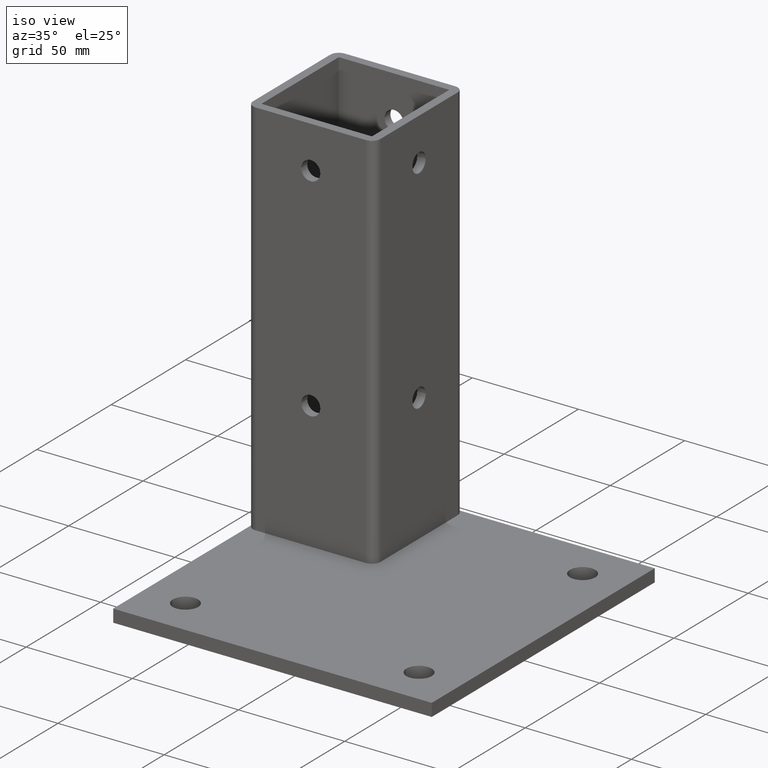
[diagram: clean part render]
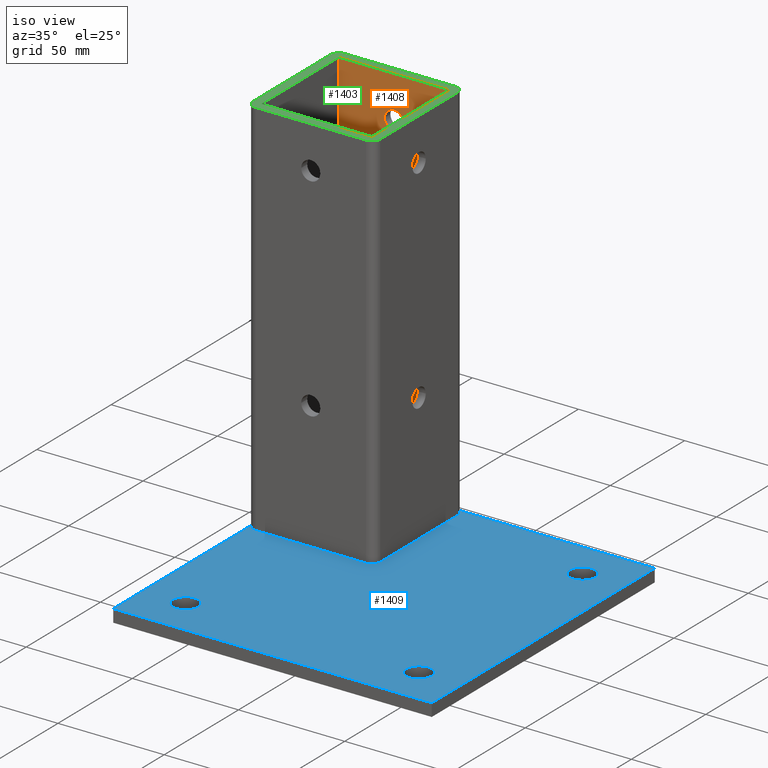
[diagram: same view with three faces highlighted in distinct colors, each labeled with its STEP entity id]
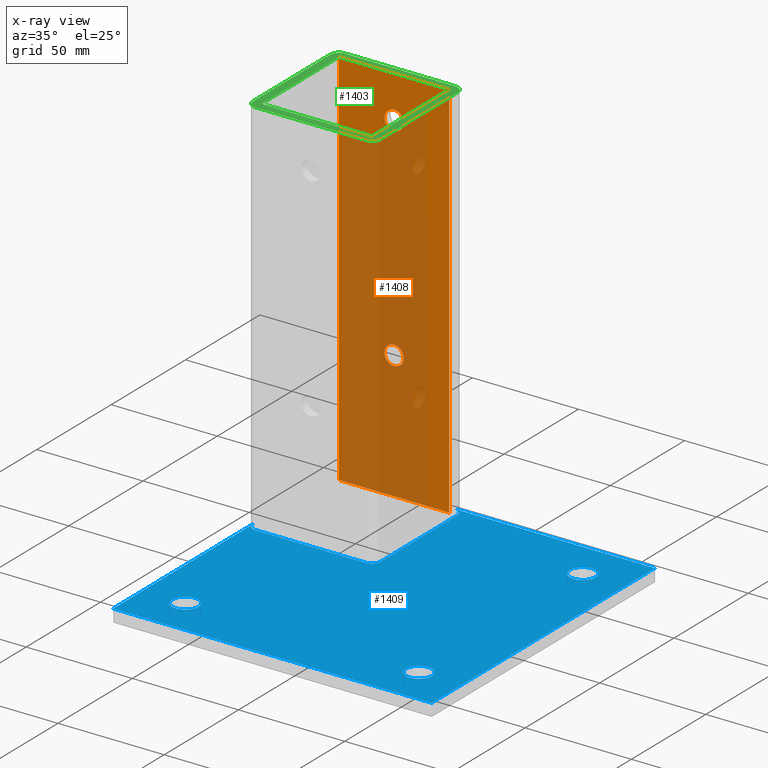
[diagram: x-ray of the same camera — body ghosted, the three highlighted faces saturated]
A machine part, iso view with three faces highlighted in distinct colors.
The next image is the same camera in x-ray (body ghosted, the three faces saturated) — at least one of them is partly hidden behind the body in this view.
Their STEP definitions:

[orange] entity #1408 — the highlighted planar face has unit normal (0, -1, 0).
#20 = CARTESIAN_POINT ( 'NONE',  ( 26.00000000000000400, 26.00000000000000400, 6.938893903907228400E-015 ) ) ;
#58 = VERTEX_POINT ( 'NONE', #20 ) ;
#65 = VERTEX_POINT ( 'NONE', #1233 ) ;
#66 = VERTEX_POINT ( 'NONE', #1232 ) ;
#67 = VERTEX_POINT ( 'NONE', #1240 ) ;
#104 = CARTESIAN_POINT ( 'NONE',  ( -1.541976423090492700E-015, 26.00000000000000400, 160.0000000000000000 ) ) ;
#105 = DIRECTION ( 'NONE',  ( -3.854941057726234600E-016, -1.000000000000000000, 0.0000000000000000000 ) ) ;
#106 = DIRECTION ( 'NONE',  ( 1.000000000000000000, 0.0000000000000000000, 0.0000000000000000000 ) ) ;
#217 = PLANE ( 'NONE',  #1358 ) ;
#278 = EDGE_CURVE ( 'NONE', #67, #58, #523, .T. ) ;
#283 = EDGE_CURVE ( 'NONE', #58, #65, #1224, .T. ) ;
#285 = EDGE_CURVE ( 'NONE', #65, #66, #995, .T. ) ;
#287 = EDGE_CURVE ( 'NONE', #66, #67, #999, .T. ) ;
#289 = EDGE_CURVE ( 'NONE', #924, #925, #1003, .T. ) ;
#291 = EDGE_CURVE ( 'NONE', #923, #927, #1005, .T. ) ;
#338 = EDGE_CURVE ( 'NONE', #927, #923, #1078, .T. ) ;
#342 = EDGE_CURVE ( 'NONE', #925, #924, #1084, .T. ) ;
#396 = CARTESIAN_POINT ( 'NONE',  ( -1.541976423090492700E-015, 26.00000000000000400, 160.0000000000000000 ) ) ;
#397 = DIRECTION ( 'NONE',  ( -3.854941057726234600E-016, -1.000000000000000000, 0.0000000000000000000 ) ) ;
#398 = DIRECTION ( 'NONE',  ( 1.000000000000000000, 0.0000000000000000000, 0.0000000000000000000 ) ) ;
#406 = CARTESIAN_POINT ( 'NONE',  ( -1.541976423090494400E-015, 26.00000000000000400, 60.00000000000000000 ) ) ;
#407 = DIRECTION ( 'NONE',  ( 3.854941057726240600E-016, 1.000000000000000000, -5.944228223417393100E-031 ) ) ;
#408 = DIRECTION ( 'NONE',  ( 1.000000000000000000, 0.0000000000000000000, 0.0000000000000000000 ) ) ;
#438 = CARTESIAN_POINT ( 'NONE',  ( 4.500000000000002700, 26.00000000000000400, 160.0000000000000000 ) ) ;
#439 = CARTESIAN_POINT ( 'NONE',  ( -4.499999999999999100, 26.00000000000000400, 60.00000000000000000 ) ) ;
#440 = CARTESIAN_POINT ( 'NONE',  ( 4.499999999999995600, 26.00000000000000400, 60.00000000000000000 ) ) ;
#442 = CARTESIAN_POINT ( 'NONE',  ( -4.500000000000005300, 26.00000000000000400, 160.0000000000000000 ) ) ;
#522 = VECTOR ( 'NONE', #1267, 1000.000000000000000 ) ;
#523 = LINE ( 'NONE', #1266, #522 ) ;
#589 = EDGE_LOOP ( 'NONE', ( #597, #596, #595, #594 ) ) ;
#594 = ORIENTED_EDGE ( 'NONE', *, *, #283, .T. ) ;
#595 = ORIENTED_EDGE ( 'NONE', *, *, #278, .T. ) ;
#596 = ORIENTED_EDGE ( 'NONE', *, *, #287, .T. ) ;
#597 = ORIENTED_EDGE ( 'NONE', *, *, #285, .T. ) ;
#598 = ORIENTED_EDGE ( 'NONE', *, *, #338, .F. ) ;
#599 = ORIENTED_EDGE ( 'NONE', *, *, #291, .F. ) ;
#600 = ORIENTED_EDGE ( 'NONE', *, *, #289, .T. ) ;
#697 = EDGE_LOOP ( 'NONE', ( #711, #600 ) ) ;
#698 = EDGE_LOOP ( 'NONE', ( #599, #598 ) ) ;
#711 = ORIENTED_EDGE ( 'NONE', *, *, #342, .T. ) ;
#896 = AXIS2_PLACEMENT_3D ( 'NONE', #406, #407, #408 ) ;
#898 = AXIS2_PLACEMENT_3D ( 'NONE', #396, #397, #398 ) ;
#916 = AXIS2_PLACEMENT_3D ( 'NONE', #104, #105, #106 ) ;
#919 = AXIS2_PLACEMENT_3D ( 'NONE', #1290, #1291, #1292 ) ;
#923 = VERTEX_POINT ( 'NONE', #438 ) ;
#924 = VERTEX_POINT ( 'NONE', #439 ) ;
#925 = VERTEX_POINT ( 'NONE', #440 ) ;
#927 = VERTEX_POINT ( 'NONE', #442 ) ;
#953 = CARTESIAN_POINT ( 'NONE',  ( -26.00000000000000400, 26.00000000000000400, 180.0000000000000000 ) ) ;
#954 = DIRECTION ( 'NONE',  ( 0.0000000000000000000, -1.000000000000000000, 0.0000000000000000000 ) ) ;
#955 = DIRECTION ( 'NONE',  ( 0.0000000000000000000, 0.0000000000000000000, -1.000000000000000000 ) ) ;
#995 = LINE ( 'NONE', #1281, #996 ) ;
#996 = VECTOR ( 'NONE', #1282, 1000.000000000000000 ) ;
#999 = LINE ( 'NONE', #1285, #1001 ) ;
#1001 = VECTOR ( 'NONE', #1286, 1000.000000000000000 ) ;
#1003 = CIRCLE ( 'NONE', #919, 4.499999999999997300 ) ;
#1005 = CIRCLE ( 'NONE', #916, 4.500000000000003600 ) ;
#1078 = CIRCLE ( 'NONE', #898, 4.500000000000003600 ) ;
#1084 = CIRCLE ( 'NONE', #896, 4.499999999999997300 ) ;
#1154 = FACE_BOUND ( 'NONE', #697, .T. ) ;
#1155 = FACE_BOUND ( 'NONE', #698, .T. ) ;
#1157 = FACE_OUTER_BOUND ( 'NONE', #589, .T. ) ;
#1223 = VECTOR ( 'NONE', #1278, 1000.000000000000000 ) ;
#1224 = LINE ( 'NONE', #1277, #1223 ) ;
#1232 = CARTESIAN_POINT ( 'NONE',  ( -25.99999999000000300, 25.99999999000000300, 180.0000000000000000 ) ) ;
#1233 = CARTESIAN_POINT ( 'NONE',  ( 25.99999999500000300, 25.99999999500000300, 180.0000000000000000 ) ) ;
#1240 = CARTESIAN_POINT ( 'NONE',  ( -26.00000000000000400, 26.00000000000000400, 6.938893903907228400E-015 ) ) ;
#1266 = CARTESIAN_POINT ( 'NONE',  ( 0.0000000000000000000, 26.00000000000000400, 0.0000000000000000000 ) ) ;
#1267 = DIRECTION ( 'NONE',  ( 1.000000000000000000, 0.0000000000000000000, 0.0000000000000000000 ) ) ;
#1277 = CARTESIAN_POINT ( 'NONE',  ( 26.00000000000000400, 26.00000000000000400, 90.00000000000000000 ) ) ;
#1278 = DIRECTION ( 'NONE',  ( -0.0000000000000000000, -0.0000000000000000000, 1.000000000000000000 ) ) ;
#1281 = CARTESIAN_POINT ( 'NONE',  ( 0.0000000000000000000, 26.00000000000000400, 180.0000000000000000 ) ) ;
#1282 = DIRECTION ( 'NONE',  ( -1.000000000000000000, -0.0000000000000000000, -0.0000000000000000000 ) ) ;
#1285 = CARTESIAN_POINT ( 'NONE',  ( -26.00000000000000400, 26.00000000000000400, 90.00000000000000000 ) ) ;
#1286 = DIRECTION ( 'NONE',  ( 0.0000000000000000000, 0.0000000000000000000, -1.000000000000000000 ) ) ;
#1290 = CARTESIAN_POINT ( 'NONE',  ( -1.541976423090494400E-015, 26.00000000000000400, 60.00000000000000000 ) ) ;
#1291 = DIRECTION ( 'NONE',  ( 3.854941057726240600E-016, 1.000000000000000000, -5.944228223417393100E-031 ) ) ;
#1292 = DIRECTION ( 'NONE',  ( 1.000000000000000000, 0.0000000000000000000, 0.0000000000000000000 ) ) ;
#1358 = AXIS2_PLACEMENT_3D ( 'NONE', #953, #954, #955 ) ;
#1408 = ADVANCED_FACE ( 'NONE', ( #1154, #1155, #1157 ), #217, .T. ) ;

[blue] entity #1409 — the highlighted planar face has unit normal (0, 0, 1).
#31 = CARTESIAN_POINT ( 'NONE',  ( -10.00000000000000000, -100.0000000000000000, 0.0000000000000000000 ) ) ;
#32 = DIRECTION ( 'NONE',  ( 0.0000000000000000000, 0.0000000000000000000, -1.000000000000000000 ) ) ;
#33 = DIRECTION ( 'NONE',  ( -1.000000000000000000, 0.0000000000000000000, 0.0000000000000000000 ) ) ;
#61 = VERTEX_POINT ( 'NONE', #1235 ) ;
#68 = VERTEX_POINT ( 'NONE', #1241 ) ;
#69 = DIRECTION ( 'NONE',  ( -0.0000000000000000000, -1.000000000000000000, -0.0000000000000000000 ) ) ;
#110 = CARTESIAN_POINT ( 'NONE',  ( -10.00000000000000000, -100.0000000000000000, 0.0000000000000000000 ) ) ;
#111 = DIRECTION ( 'NONE',  ( 0.0000000000000000000, 0.0000000000000000000, -1.000000000000000000 ) ) ;
#112 = DIRECTION ( 'NONE',  ( -1.000000000000000000, 0.0000000000000000000, 0.0000000000000000000 ) ) ;
#118 = CARTESIAN_POINT ( 'NONE',  ( 45.00000000000000000, -120.0000000000000000, 0.0000000000000000000 ) ) ;
#119 = DIRECTION ( 'NONE',  ( 1.000000000000000000, 0.0000000000000000000, 0.0000000000000000000 ) ) ;
#138 = CARTESIAN_POINT ( 'NONE',  ( -26.00000000000000400, -26.00000000000000400, 0.0000000000000000000 ) ) ;
#139 = DIRECTION ( 'NONE',  ( -0.0000000000000000000, 0.0000000000000000000, -1.000000000000000000 ) ) ;
#221 = EDGE_CURVE ( 'NONE', #928, #930, #580, .T. ) ;
#231 = EDGE_CURVE ( 'NONE', #942, #948, #559, .T. ) ;
#235 = AXIS2_PLACEMENT_3D ( 'NONE', #1299, #1300, #1301 ) ;
#239 = AXIS2_PLACEMENT_3D ( 'NONE', #31, #32, #33 ) ;
#247 = AXIS2_PLACEMENT_3D ( 'NONE', #1319, #1320, #1321 ) ;
#252 = AXIS2_PLACEMENT_3D ( 'NONE', #1340, #1341, #1342 ) ;
#253 = AXIS2_PLACEMENT_3D ( 'NONE', #1268, #1269, #1270 ) ;
#264 = EDGE_CURVE ( 'NONE', #477, #478, #544, .T. ) ;
#272 = EDGE_CURVE ( 'NONE', #61, #473, #532, .T. ) ;
#275 = EDGE_CURVE ( 'NONE', #68, #1432, #530, .T. ) ;
#276 = EDGE_CURVE ( 'NONE', #61, #68, #527, .T. ) ;
#279 = EDGE_CURVE ( 'NONE', #930, #928, #520, .T. ) ;
#293 = EDGE_CURVE ( 'NONE', #948, #942, #1007, .T. ) ;
#296 = EDGE_CURVE ( 'NONE', #1418, #1432, #1011, .T. ) ;
#304 = EDGE_CURVE ( 'NONE', #1413, #1416, #1024, .T. ) ;
#309 = EDGE_CURVE ( 'NONE', #1423, #1413, #1031, .T. ) ;
#311 = EDGE_CURVE ( 'NONE', #471, #1423, #1035, .T. ) ;
#313 = EDGE_CURVE ( 'NONE', #473, #471, #1037, .T. ) ;
#319 = EDGE_CURVE ( 'NONE', #1416, #1418, #1047, .T. ) ;
#346 = EDGE_CURVE ( 'NONE', #478, #477, #1090, .T. ) ;
#352 = DIRECTION ( 'NONE',  ( 1.000000000000000000, 0.0000000000000000000, 0.0000000000000000000 ) ) ;
#362 = CARTESIAN_POINT ( 'NONE',  ( 45.00000000000000000, -29.99999999999998600, 0.0000000000000000000 ) ) ;
#363 = DIRECTION ( 'NONE',  ( -1.000000000000000000, -0.0000000000000000000, -0.0000000000000000000 ) ) ;
#367 = CARTESIAN_POINT ( 'NONE',  ( 26.00000000000000400, -26.00000000000000400, 0.0000000000000000000 ) ) ;
#368 = DIRECTION ( 'NONE',  ( -0.0000000000000000000, -0.0000000000000000000, -1.000000000000000000 ) ) ;
#369 = DIRECTION ( 'NONE',  ( 1.000000000000000000, 0.0000000000000000000, 0.0000000000000000000 ) ) ;
#372 = CARTESIAN_POINT ( 'NONE',  ( 30.00000000000000400, -45.00000000000000000, 0.0000000000000000000 ) ) ;
#373 = DIRECTION ( 'NONE',  ( -0.0000000000000000000, -1.000000000000000000, -0.0000000000000000000 ) ) ;
#386 = CARTESIAN_POINT ( 'NONE',  ( -30.00000000000000000, -45.00000000000000000, 0.0000000000000000000 ) ) ;
#416 = CARTESIAN_POINT ( 'NONE',  ( 100.0000000000000000, 10.00000000000000000, 0.0000000000000000000 ) ) ;
#417 = DIRECTION ( 'NONE',  ( 0.0000000000000000000, 0.0000000000000000000, -1.000000000000000000 ) ) ;
#418 = DIRECTION ( 'NONE',  ( -1.000000000000000000, 0.0000000000000000000, 0.0000000000000000000 ) ) ;
#428 = CARTESIAN_POINT ( 'NONE',  ( 30.00000000000000000, -26.00000000000000400, 3.469446951953614200E-015 ) ) ;
#430 = CARTESIAN_POINT ( 'NONE',  ( 30.00000000000000000, 26.00000000000000400, 3.469446951953614200E-015 ) ) ;
#434 = CARTESIAN_POINT ( 'NONE',  ( 94.00000000000000000, 10.00000000000000000, 0.0000000000000000000 ) ) ;
#435 = CARTESIAN_POINT ( 'NONE',  ( 106.0000000000000100, 10.00000000000000000, 0.0000000000000000000 ) ) ;
#443 = CARTESIAN_POINT ( 'NONE',  ( 106.0000000000000100, -100.0000000000000000, 0.0000000000000000000 ) ) ;
#445 = CARTESIAN_POINT ( 'NONE',  ( 94.00000000000000000, -100.0000000000000000, 0.0000000000000000000 ) ) ;
#457 = CARTESIAN_POINT ( 'NONE',  ( -4.000000000000000000, -100.0000000000000000, 0.0000000000000000000 ) ) ;
#463 = CARTESIAN_POINT ( 'NONE',  ( -16.00000000000000000, -100.0000000000000000, 0.0000000000000000000 ) ) ;
#471 = VERTEX_POINT ( 'NONE', #428 ) ;
#473 = VERTEX_POINT ( 'NONE', #430 ) ;
#477 = VERTEX_POINT ( 'NONE', #434 ) ;
#478 = VERTEX_POINT ( 'NONE', #435 ) ;
#520 = CIRCLE ( 'NONE', #253, 6.000000000000005300 ) ;
#526 = VECTOR ( 'NONE', #1263, 1000.000000000000000 ) ;
#527 = LINE ( 'NONE', #1262, #526 ) ;
#528 = VECTOR ( 'NONE', #1261, 1000.000000000000000 ) ;
#530 = LINE ( 'NONE', #1348, #528 ) ;
#532 = CIRCLE ( 'NONE', #252, 3.999999999999996400 ) ;
#544 = CIRCLE ( 'NONE', #247, 6.000000000000005300 ) ;
#559 = CIRCLE ( 'NONE', #239, 6.000000000000000000 ) ;
#580 = CIRCLE ( 'NONE', #235, 6.000000000000005300 ) ;
#604 = ORIENTED_EDGE ( 'NONE', *, *, #279, .T. ) ;
#605 = ORIENTED_EDGE ( 'NONE', *, *, #231, .T. ) ;
#606 = ORIENTED_EDGE ( 'NONE', *, *, #293, .T. ) ;
#689 = EDGE_LOOP ( 'NONE', ( #779, #780, #773, #771, #768, #767, #766, #764, #763 ) ) ;
#690 = EDGE_LOOP ( 'NONE', ( #777, #778 ) ) ;
#692 = EDGE_LOOP ( 'NONE', ( #604, #776 ) ) ;
#693 = EDGE_LOOP ( 'NONE', ( #606, #605 ) ) ;
#763 = ORIENTED_EDGE ( 'NONE', *, *, #319, .T. ) ;
#764 = ORIENTED_EDGE ( 'NONE', *, *, #304, .T. ) ;
#766 = ORIENTED_EDGE ( 'NONE', *, *, #309, .T. ) ;
#767 = ORIENTED_EDGE ( 'NONE', *, *, #311, .T. ) ;
#768 = ORIENTED_EDGE ( 'NONE', *, *, #313, .T. ) ;
#771 = ORIENTED_EDGE ( 'NONE', *, *, #272, .T. ) ;
#773 = ORIENTED_EDGE ( 'NONE', *, *, #276, .F. ) ;
#776 = ORIENTED_EDGE ( 'NONE', *, *, #221, .T. ) ;
#777 = ORIENTED_EDGE ( 'NONE', *, *, #264, .T. ) ;
#778 = ORIENTED_EDGE ( 'NONE', *, *, #346, .T. ) ;
#779 = ORIENTED_EDGE ( 'NONE', *, *, #296, .T. ) ;
#780 = ORIENTED_EDGE ( 'NONE', *, *, #275, .F. ) ;
#894 = AXIS2_PLACEMENT_3D ( 'NONE', #416, #417, #418 ) ;
#908 = AXIS2_PLACEMENT_3D ( 'NONE', #367, #368, #369 ) ;
#911 = AXIS2_PLACEMENT_3D ( 'NONE', #138, #139, #352 ) ;
#922 = AXIS2_PLACEMENT_3D ( 'NONE', #110, #111, #112 ) ;
#928 = VERTEX_POINT ( 'NONE', #443 ) ;
#930 = VERTEX_POINT ( 'NONE', #445 ) ;
#942 = VERTEX_POINT ( 'NONE', #457 ) ;
#948 = VERTEX_POINT ( 'NONE', #463 ) ;
#956 = PLANE ( 'NONE',  #1357 ) ;
#957 = CARTESIAN_POINT ( 'NONE',  ( -30.00000000000000000, -120.0000000000000000, 0.0000000000000000000 ) ) ;
#958 = DIRECTION ( 'NONE',  ( 0.0000000000000000000, 0.0000000000000000000, 1.000000000000000000 ) ) ;
#959 = DIRECTION ( 'NONE',  ( 1.000000000000000000, 0.0000000000000000000, 0.0000000000000000000 ) ) ;
#969 = CARTESIAN_POINT ( 'NONE',  ( -26.00000000000000400, -29.99999999999999300, 0.0000000000000000000 ) ) ;
#972 = CARTESIAN_POINT ( 'NONE',  ( -30.00000000000000000, -26.00000003199997800, 3.469446951953614200E-015 ) ) ;
#974 = CARTESIAN_POINT ( 'NONE',  ( -30.00000000000000000, -120.0000000000000000, 3.000001635999893800E-008 ) ) ;
#979 = CARTESIAN_POINT ( 'NONE',  ( 25.99999999923062400, -29.99999999999999300, 0.0000000000000000000 ) ) ;
#988 = CARTESIAN_POINT ( 'NONE',  ( 120.0000000000000000, -120.0000000000000000, 0.0000000000000000000 ) ) ;
#1007 = CIRCLE ( 'NONE', #922, 6.000000000000000000 ) ;
#1011 = LINE ( 'NONE', #118, #1012 ) ;
#1012 = VECTOR ( 'NONE', #119, 1000.000000000000000 ) ;
#1024 = CIRCLE ( 'NONE', #911, 4.000000000000003600 ) ;
#1031 = LINE ( 'NONE', #362, #1032 ) ;
#1032 = VECTOR ( 'NONE', #363, 1000.000000000000000 ) ;
#1035 = CIRCLE ( 'NONE', #908, 3.999999999999996400 ) ;
#1037 = LINE ( 'NONE', #372, #1038 ) ;
#1038 = VECTOR ( 'NONE', #373, 1000.000000000000000 ) ;
#1047 = LINE ( 'NONE', #386, #1048 ) ;
#1048 = VECTOR ( 'NONE', #69, 1000.000000000000000 ) ;
#1090 = CIRCLE ( 'NONE', #894, 6.000000000000005300 ) ;
#1158 = FACE_BOUND ( 'NONE', #693, .T. ) ;
#1159 = FACE_BOUND ( 'NONE', #692, .T. ) ;
#1161 = FACE_BOUND ( 'NONE', #690, .T. ) ;
#1162 = FACE_OUTER_BOUND ( 'NONE', #689, .T. ) ;
#1235 = CARTESIAN_POINT ( 'NONE',  ( 26.00000003200000300, 30.00000000000000000, 4.500000567488060500E-008 ) ) ;
#1241 = CARTESIAN_POINT ( 'NONE',  ( 120.0000000000000000, 30.00000000000000000, 6.000001219243673900E-008 ) ) ;
#1261 = DIRECTION ( 'NONE',  ( -0.0000000000000000000, -1.000000000000000000, -0.0000000000000000000 ) ) ;
#1262 = CARTESIAN_POINT ( 'NONE',  ( 46.99999999999998600, 29.99999999999999600, 9.000000137510122400E-008 ) ) ;
#1263 = DIRECTION ( 'NONE',  ( 1.000000000000000000, 0.0000000000000000000, 0.0000000000000000000 ) ) ;
#1268 = CARTESIAN_POINT ( 'NONE',  ( 100.0000000000000000, -100.0000000000000000, 0.0000000000000000000 ) ) ;
#1269 = DIRECTION ( 'NONE',  ( 0.0000000000000000000, 0.0000000000000000000, -1.000000000000000000 ) ) ;
#1270 = DIRECTION ( 'NONE',  ( -1.000000000000000000, 0.0000000000000000000, 0.0000000000000000000 ) ) ;
#1299 = CARTESIAN_POINT ( 'NONE',  ( 100.0000000000000000, -100.0000000000000000, 0.0000000000000000000 ) ) ;
#1300 = DIRECTION ( 'NONE',  ( 0.0000000000000000000, 0.0000000000000000000, -1.000000000000000000 ) ) ;
#1301 = DIRECTION ( 'NONE',  ( -1.000000000000000000, 0.0000000000000000000, 0.0000000000000000000 ) ) ;
#1319 = CARTESIAN_POINT ( 'NONE',  ( 100.0000000000000000, 10.00000000000000000, 0.0000000000000000000 ) ) ;
#1320 = DIRECTION ( 'NONE',  ( 0.0000000000000000000, 0.0000000000000000000, -1.000000000000000000 ) ) ;
#1321 = DIRECTION ( 'NONE',  ( -1.000000000000000000, 0.0000000000000000000, 0.0000000000000000000 ) ) ;
#1340 = CARTESIAN_POINT ( 'NONE',  ( 26.00000000000000400, 26.00000000000000400, 0.0000000000000000000 ) ) ;
#1341 = DIRECTION ( 'NONE',  ( -0.0000000000000000000, -0.0000000000000000000, -1.000000000000000000 ) ) ;
#1342 = DIRECTION ( 'NONE',  ( 1.000000000000000000, -8.673617379884043400E-016, 0.0000000000000000000 ) ) ;
#1348 = CARTESIAN_POINT ( 'NONE',  ( 120.0000000000000000, -45.00000000000000000, 0.0000000000000000000 ) ) ;
#1357 = AXIS2_PLACEMENT_3D ( 'NONE', #957, #958, #959 ) ;
#1409 = ADVANCED_FACE ( 'NONE', ( #1158, #1159, #1161, #1162 ), #956, .T. ) ;
#1413 = VERTEX_POINT ( 'NONE', #969 ) ;
#1416 = VERTEX_POINT ( 'NONE', #972 ) ;
#1418 = VERTEX_POINT ( 'NONE', #974 ) ;
#1423 = VERTEX_POINT ( 'NONE', #979 ) ;
#1432 = VERTEX_POINT ( 'NONE', #988 ) ;

[green] entity #1403 — the highlighted planar face has unit normal (0, 0, 1).
#62 = VERTEX_POINT ( 'NONE', #1230 ) ;
#64 = VERTEX_POINT ( 'NONE', #1234 ) ;
#65 = VERTEX_POINT ( 'NONE', #1233 ) ;
#66 = VERTEX_POINT ( 'NONE', #1232 ) ;
#70 = CARTESIAN_POINT ( 'NONE',  ( -30.00000000000000000, 0.0000000000000000000, 180.0000000000000000 ) ) ;
#71 = DIRECTION ( 'NONE',  ( -0.0000000000000000000, -1.000000000000000000, -0.0000000000000000000 ) ) ;
#74 = CARTESIAN_POINT ( 'NONE',  ( 0.0000000000000000000, -25.99999998000000200, 180.0000000000000000 ) ) ;
#75 = DIRECTION ( 'NONE',  ( -1.000000000000000000, -0.0000000000000000000, -0.0000000000000000000 ) ) ;
#199 = PLANE ( 'NONE',  #1363 ) ;
#200 = CARTESIAN_POINT ( 'NONE',  ( -30.00000000000000000, -30.00000000000000000, 180.0000000000000000 ) ) ;
#201 = DIRECTION ( 'NONE',  ( 0.0000000000000000000, 0.0000000000000000000, 1.000000000000000000 ) ) ;
#202 = DIRECTION ( 'NONE',  ( 1.000000000000000000, 0.0000000000000000000, 0.0000000000000000000 ) ) ;
#250 = AXIS2_PLACEMENT_3D ( 'NONE', #1332, #1333, #1334 ) ;
#254 = AXIS2_PLACEMENT_3D ( 'NONE', #1345, #1346, #1347 ) ;
#269 = EDGE_CURVE ( 'NONE', #64, #1424, #536, .T. ) ;
#274 = EDGE_CURVE ( 'NONE', #472, #62, #529, .T. ) ;
#282 = EDGE_CURVE ( 'NONE', #65, #1412, #1192, .T. ) ;
#284 = EDGE_CURVE ( 'NONE', #66, #1425, #1169, .T. ) ;
#285 = EDGE_CURVE ( 'NONE', #65, #66, #995, .T. ) ;
#286 = EDGE_CURVE ( 'NONE', #64, #62, #998, .T. ) ;
#306 = EDGE_CURVE ( 'NONE', #1415, #1414, #1026, .T. ) ;
#308 = EDGE_CURVE ( 'NONE', #1414, #1417, #1029, .T. ) ;
#310 = EDGE_CURVE ( 'NONE', #1417, #470, #1033, .T. ) ;
#315 = EDGE_CURVE ( 'NONE', #470, #472, #1041, .T. ) ;
#320 = EDGE_CURVE ( 'NONE', #1424, #1415, #1049, .T. ) ;
#322 = EDGE_CURVE ( 'NONE', #1412, #1425, #1053, .T. ) ;
#355 = CARTESIAN_POINT ( 'NONE',  ( -26.00000000000000400, -26.00000000000000400, 180.0000000000000000 ) ) ;
#356 = DIRECTION ( 'NONE',  ( 0.0000000000000000000, -0.0000000000000000000, 1.000000000000000000 ) ) ;
#357 = DIRECTION ( 'NONE',  ( 1.000000000000000000, 0.0000000000000000000, 0.0000000000000000000 ) ) ;
#360 = CARTESIAN_POINT ( 'NONE',  ( 0.0000000000000000000, -30.00000000000000000, 180.0000000000000000 ) ) ;
#361 = DIRECTION ( 'NONE',  ( 1.000000000000000000, 0.0000000000000000000, 0.0000000000000000000 ) ) ;
#364 = CARTESIAN_POINT ( 'NONE',  ( 26.00000000000000400, -26.00000000000000400, 180.0000000000000000 ) ) ;
#365 = DIRECTION ( 'NONE',  ( 0.0000000000000000000, 0.0000000000000000000, 1.000000000000000000 ) ) ;
#366 = DIRECTION ( 'NONE',  ( 1.000000000000000000, 0.0000000000000000000, 0.0000000000000000000 ) ) ;
#376 = CARTESIAN_POINT ( 'NONE',  ( 30.00000000000000000, 0.0000000000000000000, 180.0000000000000000 ) ) ;
#377 = DIRECTION ( 'NONE',  ( 0.0000000000000000000, 1.000000000000000000, 0.0000000000000000000 ) ) ;
#427 = CARTESIAN_POINT ( 'NONE',  ( 30.00000000000000000, -26.00000000000000400, 180.0000000000000000 ) ) ;
#429 = CARTESIAN_POINT ( 'NONE',  ( 30.00000000000000000, 26.00000000000000400, 180.0000000000000000 ) ) ;
#470 = VERTEX_POINT ( 'NONE', #427 ) ;
#472 = VERTEX_POINT ( 'NONE', #429 ) ;
#529 = CIRCLE ( 'NONE', #254, 3.999999999999996400 ) ;
#536 = CIRCLE ( 'NONE', #250, 4.000000000000003600 ) ;
#707 = EDGE_LOOP ( 'NONE', ( #741, #740, #739, #738, #737, #736, #735, #734 ) ) ;
#709 = EDGE_LOOP ( 'NONE', ( #746, #745, #744, #743 ) ) ;
#734 = ORIENTED_EDGE ( 'NONE', *, *, #286, .F. ) ;
#735 = ORIENTED_EDGE ( 'NONE', *, *, #274, .T. ) ;
#736 = ORIENTED_EDGE ( 'NONE', *, *, #315, .T. ) ;
#737 = ORIENTED_EDGE ( 'NONE', *, *, #310, .T. ) ;
#738 = ORIENTED_EDGE ( 'NONE', *, *, #308, .T. ) ;
#739 = ORIENTED_EDGE ( 'NONE', *, *, #306, .T. ) ;
#740 = ORIENTED_EDGE ( 'NONE', *, *, #320, .T. ) ;
#741 = ORIENTED_EDGE ( 'NONE', *, *, #269, .T. ) ;
#743 = ORIENTED_EDGE ( 'NONE', *, *, #285, .F. ) ;
#744 = ORIENTED_EDGE ( 'NONE', *, *, #284, .F. ) ;
#745 = ORIENTED_EDGE ( 'NONE', *, *, #322, .T. ) ;
#746 = ORIENTED_EDGE ( 'NONE', *, *, #282, .T. ) ;
#909 = AXIS2_PLACEMENT_3D ( 'NONE', #364, #365, #366 ) ;
#910 = AXIS2_PLACEMENT_3D ( 'NONE', #355, #356, #357 ) ;
#968 = CARTESIAN_POINT ( 'NONE',  ( 25.99999999500000300, -25.99999999500000300, 180.0000000000000000 ) ) ;
#970 = CARTESIAN_POINT ( 'NONE',  ( -26.00000000000000400, -30.00000000000000000, 180.0000000000000000 ) ) ;
#971 = CARTESIAN_POINT ( 'NONE',  ( -30.00000000000000000, -26.00000003199997800, 180.0000000000000000 ) ) ;
#973 = CARTESIAN_POINT ( 'NONE',  ( 25.99999999923062400, -30.00000000000000000, 180.0000000000000000 ) ) ;
#980 = CARTESIAN_POINT ( 'NONE',  ( -30.00000000000000400, 25.99999999917959000, 180.0000000000000000 ) ) ;
#981 = CARTESIAN_POINT ( 'NONE',  ( -25.99999999000000300, -25.99999999000000300, 180.0000000000000000 ) ) ;
#995 = LINE ( 'NONE', #1281, #996 ) ;
#996 = VECTOR ( 'NONE', #1282, 1000.000000000000000 ) ;
#998 = LINE ( 'NONE', #1283, #1000 ) ;
#1000 = VECTOR ( 'NONE', #1284, 1000.000000000000000 ) ;
#1026 = CIRCLE ( 'NONE', #910, 4.000000000000003600 ) ;
#1029 = LINE ( 'NONE', #360, #1030 ) ;
#1030 = VECTOR ( 'NONE', #361, 1000.000000000000000 ) ;
#1033 = CIRCLE ( 'NONE', #909, 3.999999999999996400 ) ;
#1041 = LINE ( 'NONE', #376, #1042 ) ;
#1042 = VECTOR ( 'NONE', #377, 1000.000000000000000 ) ;
#1049 = LINE ( 'NONE', #70, #1050 ) ;
#1050 = VECTOR ( 'NONE', #71, 1000.000000000000000 ) ;
#1053 = LINE ( 'NONE', #74, #1056 ) ;
#1056 = VECTOR ( 'NONE', #75, 1000.000000000000000 ) ;
#1135 = FACE_BOUND ( 'NONE', #709, .T. ) ;
#1136 = FACE_OUTER_BOUND ( 'NONE', #707, .T. ) ;
#1169 = LINE ( 'NONE', #1279, #1187 ) ;
#1170 = VECTOR ( 'NONE', #1276, 1000.000000000000000 ) ;
#1187 = VECTOR ( 'NONE', #1280, 1000.000000000000000 ) ;
#1192 = LINE ( 'NONE', #1275, #1170 ) ;
#1230 = CARTESIAN_POINT ( 'NONE',  ( 26.00000003200000300, 30.00000000000000000, 180.0000000000000000 ) ) ;
#1232 = CARTESIAN_POINT ( 'NONE',  ( -25.99999999000000300, 25.99999999000000300, 180.0000000000000000 ) ) ;
#1233 = CARTESIAN_POINT ( 'NONE',  ( 25.99999999500000300, 25.99999999500000300, 180.0000000000000000 ) ) ;
#1234 = CARTESIAN_POINT ( 'NONE',  ( -26.00000000000000400, 30.00000000000000000, 180.0000000000000000 ) ) ;
#1275 = CARTESIAN_POINT ( 'NONE',  ( 25.99999998000000200, 0.0000000000000000000, 180.0000000000000000 ) ) ;
#1276 = DIRECTION ( 'NONE',  ( -0.0000000000000000000, -1.000000000000000000, -0.0000000000000000000 ) ) ;
#1279 = CARTESIAN_POINT ( 'NONE',  ( -26.00000000000000400, 0.0000000000000000000, 180.0000000000000000 ) ) ;
#1280 = DIRECTION ( 'NONE',  ( -0.0000000000000000000, -1.000000000000000000, -0.0000000000000000000 ) ) ;
#1281 = CARTESIAN_POINT ( 'NONE',  ( 0.0000000000000000000, 26.00000000000000400, 180.0000000000000000 ) ) ;
#1282 = DIRECTION ( 'NONE',  ( -1.000000000000000000, -0.0000000000000000000, -0.0000000000000000000 ) ) ;
#1283 = CARTESIAN_POINT ( 'NONE',  ( 47.00000000000000000, 30.00000000000000000, 180.0000000000000000 ) ) ;
#1284 = DIRECTION ( 'NONE',  ( 1.000000000000000000, 0.0000000000000000000, 0.0000000000000000000 ) ) ;
#1332 = CARTESIAN_POINT ( 'NONE',  ( -26.00000000000000400, 26.00000000000000400, 180.0000000000000000 ) ) ;
#1333 = DIRECTION ( 'NONE',  ( 0.0000000000000000000, -0.0000000000000000000, 1.000000000000000000 ) ) ;
#1334 = DIRECTION ( 'NONE',  ( 1.000000000000000000, 0.0000000000000000000, 0.0000000000000000000 ) ) ;
#1345 = CARTESIAN_POINT ( 'NONE',  ( 26.00000000000000400, 26.00000000000000400, 180.0000000000000000 ) ) ;
#1346 = DIRECTION ( 'NONE',  ( 0.0000000000000000000, 0.0000000000000000000, 1.000000000000000000 ) ) ;
#1347 = DIRECTION ( 'NONE',  ( 1.000000000000000000, 0.0000000000000000000, 0.0000000000000000000 ) ) ;
#1363 = AXIS2_PLACEMENT_3D ( 'NONE', #200, #201, #202 ) ;
#1403 = ADVANCED_FACE ( 'NONE', ( #1135, #1136 ), #199, .T. ) ;
#1412 = VERTEX_POINT ( 'NONE', #968 ) ;
#1414 = VERTEX_POINT ( 'NONE', #970 ) ;
#1415 = VERTEX_POINT ( 'NONE', #971 ) ;
#1417 = VERTEX_POINT ( 'NONE', #973 ) ;
#1424 = VERTEX_POINT ( 'NONE', #980 ) ;
#1425 = VERTEX_POINT ( 'NONE', #981 ) ;